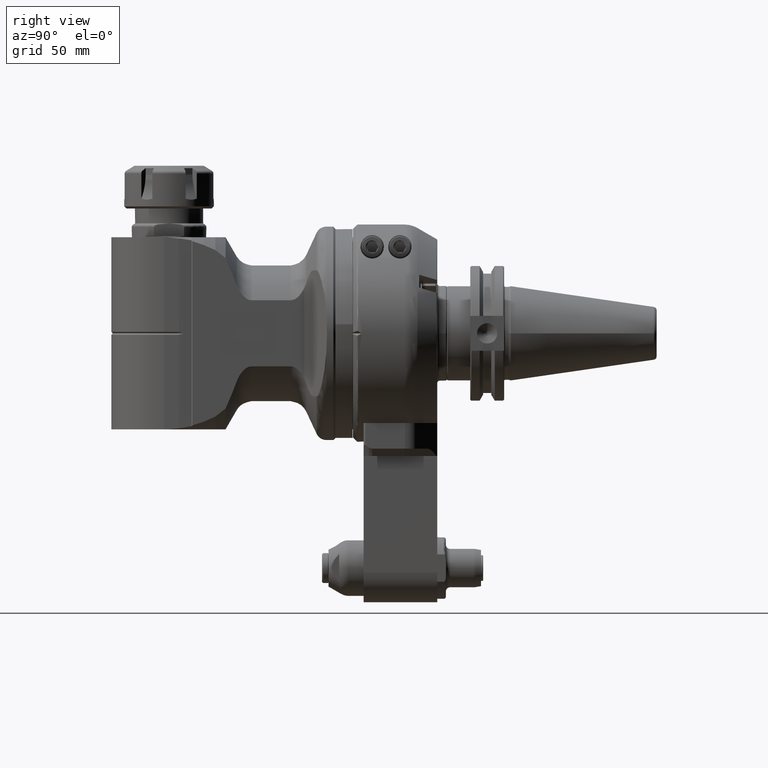
[diagram: clean part render]
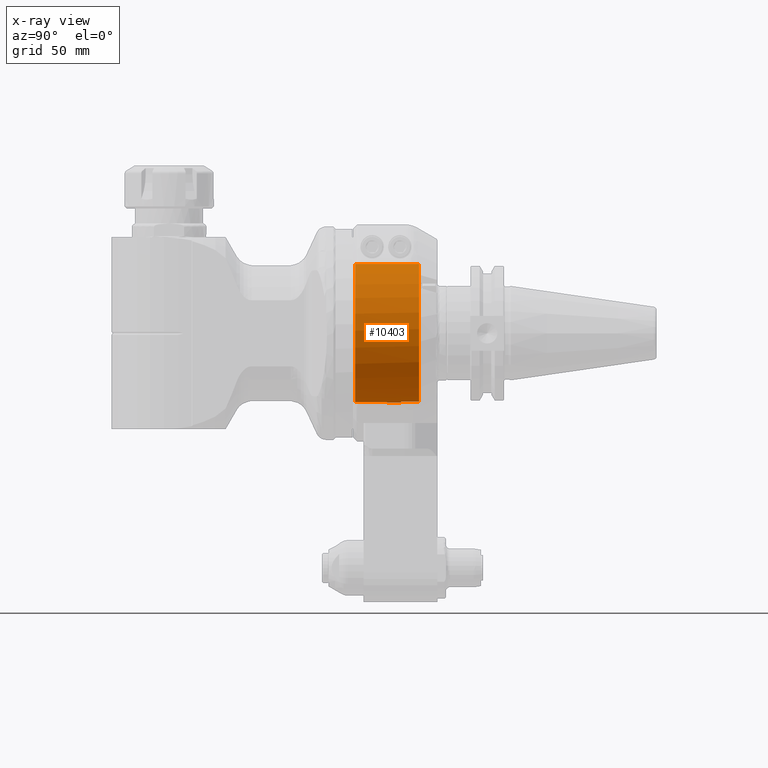
[diagram: x-ray — body ghosted, one internal face saturated and labeled with its STEP entity id]
A machine part, right view, then the same camera in x-ray: the body is ghosted and one INTERNAL B-rep face — a face not visible from any outside direction — is saturated and labeled: STEP entity #10403.
In plain terms, the highlighted cylindrical surface (partial cylindrical patch) has radius 32.5 mm, axis along (0, -1, 0).
Its self-contained STEP definition (entity closure, byte-faithful):
#598=LINE('',#17326,#1288);
#599=LINE('',#17329,#1289);
#600=LINE('',#17333,#1290);
#601=LINE('',#17337,#1291);
#1288=VECTOR('',#12812,8.5);
#1289=VECTOR('',#12815,8.5);
#1290=VECTOR('',#12818,30.);
#1291=VECTOR('',#12821,29.99999999998);
#1900=CYLINDRICAL_SURFACE('',#11213,32.5);
#2499=FACE_OUTER_BOUND('',#3160,.T.);
#3160=EDGE_LOOP('',(#7498,#7499,#7500,#7501,#7502,#7503,#7504,#7505));
#3888=CIRCLE('',#11164,32.5);
#3910=CIRCLE('',#11214,32.5);
#3911=CIRCLE('',#11215,32.5);
#3912=CIRCLE('',#11216,32.5);
#4543=VERTEX_POINT('',#16476);
#4544=VERTEX_POINT('',#16478);
#4582=VERTEX_POINT('',#17324);
#4583=VERTEX_POINT('',#17328);
#4584=VERTEX_POINT('',#17330);
#4585=VERTEX_POINT('',#17332);
#4586=VERTEX_POINT('',#17334);
#4587=VERTEX_POINT('',#17336);
#5633=EDGE_CURVE('',#4544,#4543,#3888,.T.);
#5703=EDGE_CURVE('',#4543,#4582,#598,.T.);
#5704=EDGE_CURVE('',#4544,#4583,#599,.T.);
#5705=EDGE_CURVE('',#4584,#4582,#3910,.T.);
#5706=EDGE_CURVE('',#4584,#4585,#600,.T.);
#5707=EDGE_CURVE('',#4586,#4585,#3911,.T.);
#5708=EDGE_CURVE('',#4586,#4587,#601,.T.);
#5709=EDGE_CURVE('',#4583,#4587,#3912,.T.);
#7498=ORIENTED_EDGE('',*,*,#5704,.F.);
#7499=ORIENTED_EDGE('',*,*,#5633,.T.);
#7500=ORIENTED_EDGE('',*,*,#5703,.T.);
#7501=ORIENTED_EDGE('',*,*,#5705,.F.);
#7502=ORIENTED_EDGE('',*,*,#5706,.T.);
#7503=ORIENTED_EDGE('',*,*,#5707,.F.);
#7504=ORIENTED_EDGE('',*,*,#5708,.T.);
#7505=ORIENTED_EDGE('',*,*,#5709,.F.);
#10403=ADVANCED_FACE('',(#2499),#1900,.F.);
#11164=AXIS2_PLACEMENT_3D('',#16479,#12681,#12682);
#11213=AXIS2_PLACEMENT_3D('',#17327,#12813,#12814);
#11214=AXIS2_PLACEMENT_3D('',#17331,#12816,#12817);
#11215=AXIS2_PLACEMENT_3D('',#17335,#12819,#12820);
#11216=AXIS2_PLACEMENT_3D('',#17338,#12822,#12823);
#12681=DIRECTION('center_axis',(0.,1.,0.));
#12682=DIRECTION('ref_axis',(0.164179104477598,0.,-0.986430545782588));
#12812=DIRECTION('',(0.,1.,0.));
#12813=DIRECTION('center_axis',(0.,-1.,0.));
#12814=DIRECTION('ref_axis',(1.38678298153134E-13,0.,-1.));
#12815=DIRECTION('',(0.,1.,0.));
#12816=DIRECTION('center_axis',(0.,-1.,0.));
#12817=DIRECTION('ref_axis',(-0.0461538461538519,0.,0.998934343430642));
#12818=DIRECTION('',(0.,-1.,0.));
#12819=DIRECTION('center_axis',(0.,1.,0.));
#12820=DIRECTION('ref_axis',(0.,0.,-1.));
#12821=DIRECTION('',(3.148370453234E-13,1.,-1.421085471521E-14));
#12822=DIRECTION('center_axis',(0.,-1.,0.));
#12823=DIRECTION('ref_axis',(0.164179104477598,0.,-0.986430545782588));
#16476=CARTESIAN_POINT('',(-5.335820895522,22.5,-32.05899273793));
#16478=CARTESIAN_POINT('',(5.335820895522,22.5,-32.05899273793));
#16479=CARTESIAN_POINT('Origin',(0.,22.5,0.));
#17324=CARTESIAN_POINT('',(-5.335820895522,31.,-32.05899273793));
#17326=CARTESIAN_POINT('',(-5.335820895522,22.5,-32.05899273793));
#17327=CARTESIAN_POINT('Origin',(0.,16.5,0.));
#17328=CARTESIAN_POINT('',(5.335820895522,31.,-32.05899273793));
#17329=CARTESIAN_POINT('',(5.335820895522,22.5,-32.05899273793));
#17330=CARTESIAN_POINT('',(-1.5,31.,32.4653661615));
#17331=CARTESIAN_POINT('Origin',(0.,31.,0.));
#17332=CARTESIAN_POINT('',(-1.5,1.,32.4653661615));
#17333=CARTESIAN_POINT('',(-1.5,31.,32.4653661615));
#17334=CARTESIAN_POINT('',(1.499999999991,1.000000000023,32.4653661615));
#17335=CARTESIAN_POINT('Origin',(0.,0.9999999999999,0.));
#17336=CARTESIAN_POINT('',(1.5,31.,32.4653661615));
#17337=CARTESIAN_POINT('',(1.499999999991,1.000000000023,32.4653661615));
#17338=CARTESIAN_POINT('Origin',(0.,31.,0.));